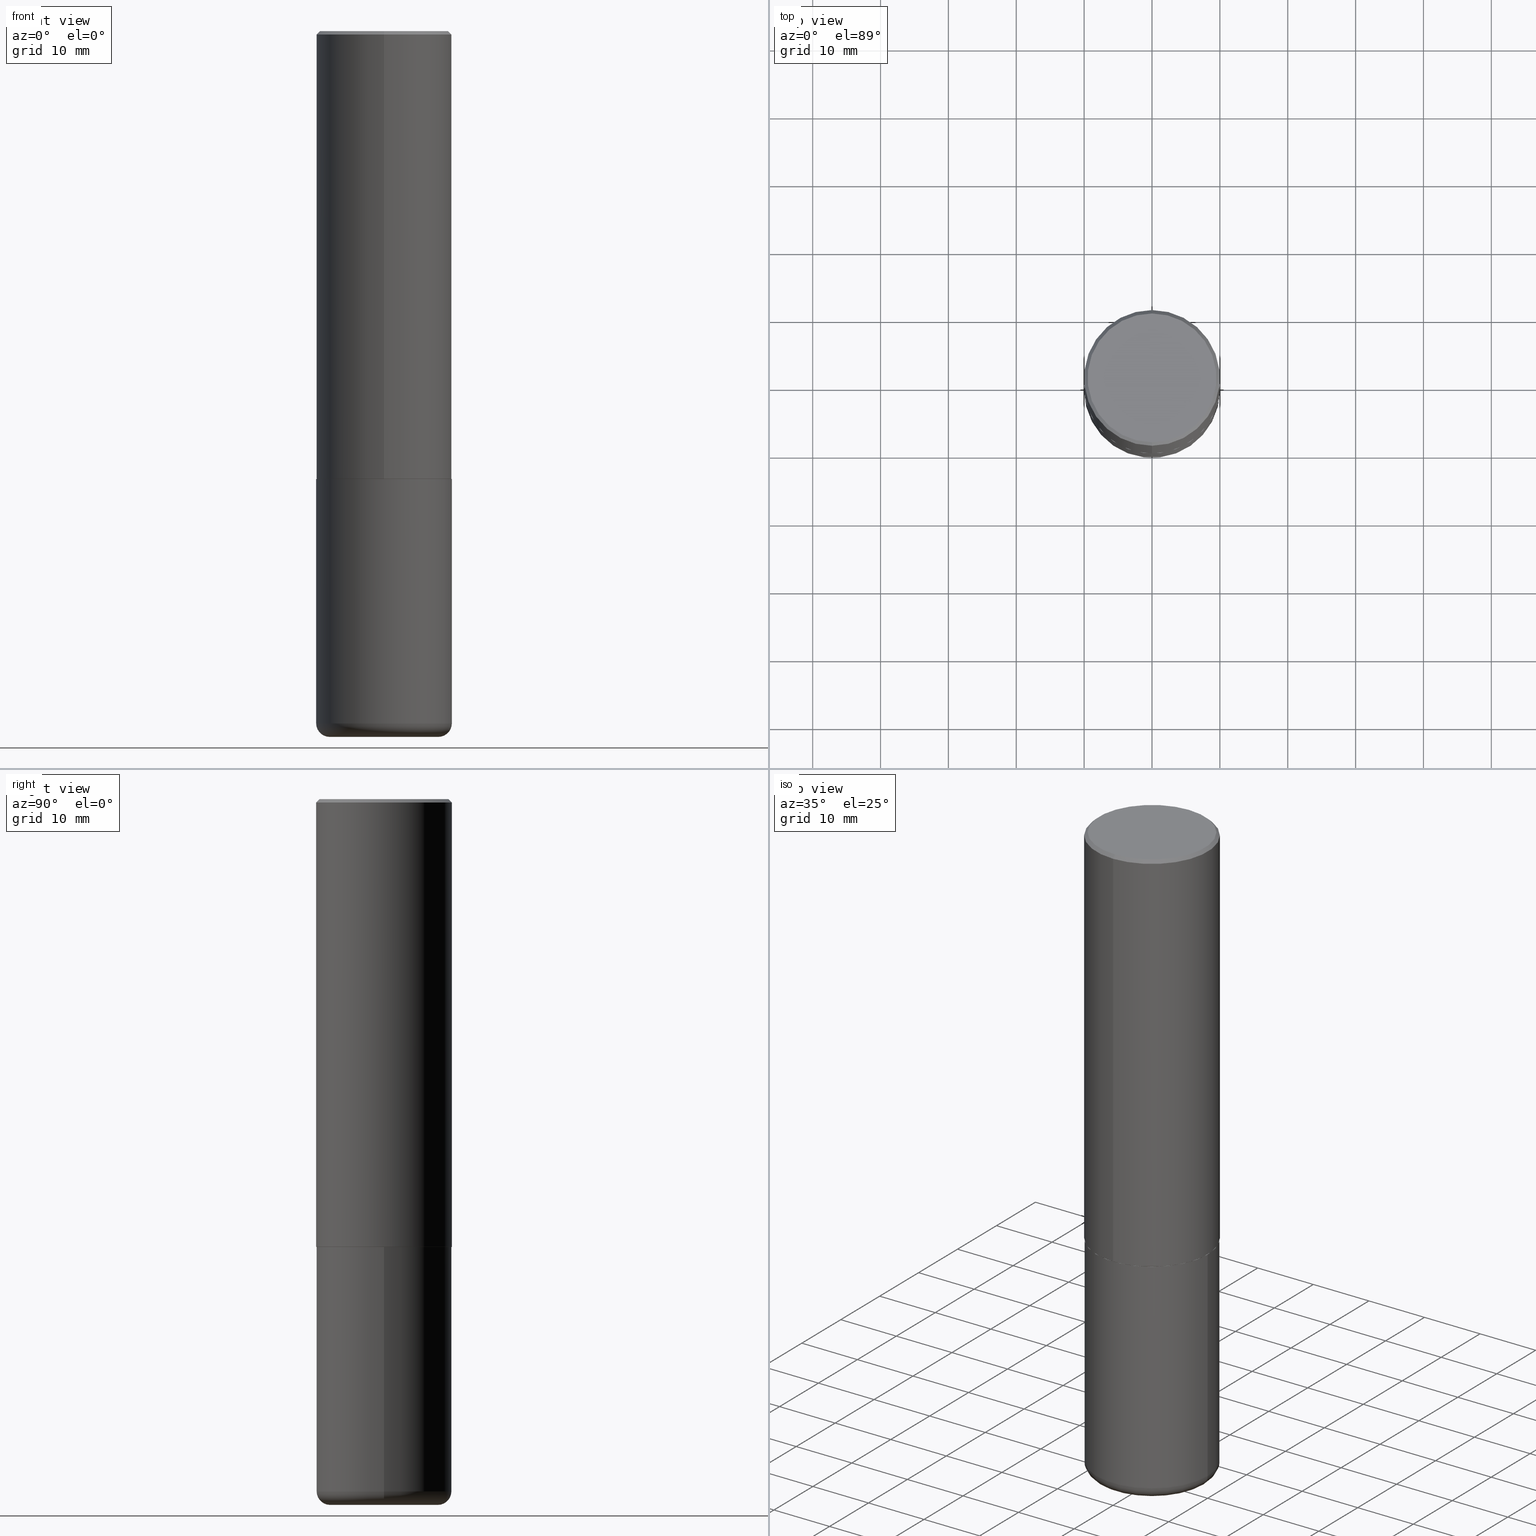
[diagram: canonical four-view strip — front | top / right | iso, engineering-drawing reading convention]
A machine part, canonical four-view strip (front | top / right | iso — engineering-drawing reading convention). The complete STEP part file that produces these views, byte-faithful:
ISO-10303-21;
HEADER;
FILE_DESCRIPTION (( 'STEP AP203' ),
    '1' );
FILE_NAME ('46924.STEP',
    '2024-03-05T09:03:01',
    ( '' ),
    ( '' ),
    'SwSTEP 2.0',
    'SolidWorks 2023',
    '' );
FILE_SCHEMA (( 'CONFIG_CONTROL_DESIGN' ));
ENDSEC;

DATA;
#1 = ORGANIZATION ( 'UNSPECIFIED', 'UNSPECIFIED', '' ) ;
#2 = LENGTH_MEASURE_WITH_UNIT ( LENGTH_MEASURE( 0.02539999999999999897 ), #119 );
#3 = CARTESIAN_POINT ( 'NONE',  ( 2.797406750687547524E-15, 0.3936999999999912236, -2.597400000000002152 ) ) ;
#4 = DATE_AND_TIME ( #391, #308 ) ;
#5 = CARTESIAN_POINT ( 'NONE',  ( 9.820513631878272860E-29, -1.402109076052630500E-14, -4.015800000000000480 ) ) ;
#6 = COORDINATED_UNIVERSAL_TIME_OFFSET ( 5, 0, .BEHIND. ) ;
#7 = FACE_OUTER_BOUND ( 'NONE', #177, .T. ) ;
#8 = PERSON_AND_ORGANIZATION ( #286, #1 ) ;
#9 = CLOSED_SHELL ( 'NONE', ( #145, #112, #175, #249, #314, #214, #240, #401 ) ) ;
#10 = DIRECTION ( 'NONE',  ( -2.445468806185136877E-29, 3.491481338843145188E-15, 1.000000000000000000 ) ) ;
#11 = AXIS2_PLACEMENT_3D ( 'NONE', #54, #360, #122 ) ;
#12 = LINE ( 'NONE', #38, #92 ) ;
#13 = DIRECTION ( 'NONE',  ( 1.000000000000000000, -6.982962677686267499E-15, 0.000000000000000000 ) ) ;
#14 = CARTESIAN_POINT ( 'NONE',  ( -2.742209443527332910E-15, -0.3927000000000090973, -2.598399999999998489 ) ) ;
#15 = VECTOR ( 'NONE', #397, 39.37007874015748143 ) ;
#16 = CARTESIAN_POINT ( 'NONE',  ( 4.890117617617573732E-31, -6.984136956843418330E-17, -0.02000000000000008715 ) ) ;
#17 = ORIENTED_EDGE ( 'NONE', *, *, #200, .T. ) ;
#18 = EDGE_CURVE ( 'NONE', #380, #91, #159, .T. ) ;
#19 = ORIENTED_EDGE ( 'NONE', *, *, #336, .F. ) ;
#20 = ORIENTED_EDGE ( 'NONE', *, *, #222, .T. ) ;
#21 = CIRCLE ( 'NONE', #400, 0.3150000000000000577 ) ;
#22 = CIRCLE ( 'NONE', #67, 0.3150000000000000577 ) ;
#23 = DIRECTION ( 'NONE',  ( -2.445468806185136597E-29, 3.491481338843145583E-15, 1.000000000000000000 ) ) ;
#24 = APPROVAL ( #292, 'UNSPECIFIED' ) ;
#25 = PERSON_AND_ORGANIZATION_ROLE ( 'design_owner' ) ;
#26 = CARTESIAN_POINT ( 'NONE',  ( -0.3937000000000000499, -8.749271185000653235E-15, -2.598400000000000265 ) ) ;
#27 = CIRCLE ( 'NONE', #74, 0.3937000000000000499 ) ;
#28 = CYLINDRICAL_SURFACE ( 'NONE', #203, 0.3937000000000001609 ) ;
#29 = DIRECTION ( 'NONE',  ( -2.445058808808776392E-29, 3.492068478421694670E-15, 1.000000000000000000 ) ) ;
#30 = EDGE_CURVE ( 'NONE', #205, #285, #275, .T. ) ;
#31 = APPLICATION_PROTOCOL_DEFINITION ( 'international standard', 'config_control_design', 1994, #198 ) ;
#32 = CARTESIAN_POINT ( 'NONE',  ( 4.890117617617573732E-31, -6.984136956843418330E-17, -0.02000000000000008715 ) ) ;
#33 = AXIS2_PLACEMENT_3D ( 'NONE', #280, #357, #96 ) ;
#34 = EDGE_LOOP ( 'NONE', ( #148, #111, #219, #19 ) ) ;
#35 = CARTESIAN_POINT ( 'NONE',  ( 2.679362779428219524E-15, 0.3736999999999997546, -1.095609464310762333E-15 ) ) ;
#36 = ADVANCED_BREP_SHAPE_REPRESENTATION ( '46924', ( #358, #195, #165 ), #115 ) ;
#37 = DATE_AND_TIME ( #231, #93 ) ;
#38 = CARTESIAN_POINT ( 'NONE',  ( -0.3937000000000000499, 2.797406750687514786E-15, -1.936584745033356735E-29 ) ) ;
#39 = AXIS2_PLACEMENT_3D ( 'NONE', #169, #160, #76 ) ;
#40 = CC_DESIGN_APPROVAL ( #24, ( #412 ) ) ;
#41 = DIRECTION ( 'NONE',  ( -6.982962677686265133E-15, -1.000000000000000000, 4.173946514383900962E-15 ) ) ;
#42 = CARTESIAN_POINT ( 'NONE',  ( 0.3937000000000000499, -2.749192406205083217E-15, 1.919750796630860172E-29 ) ) ;
#43 = CARTESIAN_POINT ( 'NONE',  ( 0.3936999999999999389, -1.677028316673138822E-14, -4.015800000000000480 ) ) ;
#44 = CARTESIAN_POINT ( 'NONE',  ( 0.3937000000000000499, -1.182145751705511584E-14, -2.598400000000000265 ) ) ;
#45 = CLOSED_SHELL ( 'NONE', ( #378, #417, #70, #206, #254, #385 ) ) ;
#46 = ORIENTED_EDGE ( 'NONE', *, *, #261, .F. ) ;
#47 = CC_DESIGN_DATE_AND_TIME_ASSIGNMENT ( #37, #233, ( #342 ) ) ;
#48 = ORIENTED_EDGE ( 'NONE', *, *, #261, .T. ) ;
#49 = VERTEX_POINT ( 'NONE', #390 ) ;
#50 = ORIENTED_EDGE ( 'NONE', *, *, #30, .T. ) ;
#51 = CONICAL_SURFACE ( 'NONE', #355, 0.3937000000000000499, 0.7853981633974476129 ) ;
#52 = DIRECTION ( 'NONE',  ( -6.982962677686265922E-15, -1.000000000000000000, 3.492068478421695064E-15 ) ) ;
#53 = ORIENTED_EDGE ( 'NONE', *, *, #320, .T. ) ;
#54 = CARTESIAN_POINT ( 'NONE',  ( 0.000000000000000000, 0.000000000000000000, 0.000000000000000000 ) ) ;
#55 = DIRECTION ( 'NONE',  ( 1.000000000000000000, -6.982962677686267499E-15, 0.000000000000000000 ) ) ;
#56 = MECHANICAL_CONTEXT ( 'NONE', #198, 'mechanical' ) ;
#57 = CARTESIAN_POINT ( 'NONE',  ( -2.700978061722651252E-15, -0.3937000000000001054, -0.01999999999999870978 ) ) ;
#58 = AXIS2_PLACEMENT_3D ( 'NONE', #264, #297, #304 ) ;
#59 = AXIS2_PLACEMENT_3D ( 'NONE', #316, #23, #250 ) ;
#60 = CARTESIAN_POINT ( 'NONE',  ( -0.3936999999999999389, -1.122368400983879100E-14, -4.015800000000000480 ) ) ;
#61 = CARTESIAN_POINT ( 'NONE',  ( 6.354306145991459756E-29, -9.072265110850031044E-15, -2.598400000000000265 ) ) ;
#62 = CARTESIAN_POINT ( 'NONE',  ( 2.609533152651355831E-15, 0.3736999999999997546, -1.200297727348474625E-15 ) ) ;
#63 = DIRECTION ( 'NONE',  ( 2.438088387897960049E-29, -3.491481338843145188E-15, -1.000000000000000000 ) ) ;
#64 = COORDINATED_UNIVERSAL_TIME_OFFSET ( 5, 0, .BEHIND. ) ;
#65 = ORIENTED_EDGE ( 'NONE', *, *, #237, .T. ) ;
#66 = AXIS2_PLACEMENT_3D ( 'NONE', #210, #243, #350 ) ;
#67 = AXIS2_PLACEMENT_3D ( 'NONE', #271, #201, #340 ) ;
#68 = DATE_TIME_ROLE ( 'creation_date' ) ;
#69 = CARTESIAN_POINT ( 'NONE',  ( 0.3150000000000000577, -1.649550358536443488E-14, -4.094500000000000028 ) ) ;
#70 = ADVANCED_FACE ( 'NONE', ( #295 ), #251, .F. ) ;
#71 = CARTESIAN_POINT ( 'NONE',  ( -5.119379194384959481E-45, 7.311571668294261102E-31, 2.093765260754239936E-16 ) ) ;
#72 = COORDINATED_UNIVERSAL_TIME_OFFSET ( 5, 0, .BEHIND. ) ;
#73 = CARTESIAN_POINT ( 'NONE',  ( 6.353240808808724474E-29, -9.073790734330933280E-15, -2.598400000000000265 ) ) ;
#74 = AXIS2_PLACEMENT_3D ( 'NONE', #61, #150, #55 ) ;
#75 = LINE ( 'NONE', #42, #15 ) ;
#76 = DIRECTION ( 'NONE',  ( 1.000000000000000000, -6.982962677686265922E-15, 4.876176775795935793E-29 ) ) ;
#77 = LINE ( 'NONE', #113, #377 ) ;
#78 = ORIENTED_EDGE ( 'NONE', *, *, #346, .T. ) ;
#79 = EDGE_LOOP ( 'NONE', ( #153, #211 ) ) ;
#80 = CC_DESIGN_PERSON_AND_ORGANIZATION_ASSIGNMENT ( #363, #393, ( #412 ) ) ;
#81 = EDGE_LOOP ( 'NONE', ( #84, #117, #341, #178 ) ) ;
#82 = ORIENTED_EDGE ( 'NONE', *, *, #187, .T. ) ;
#83 = CYLINDRICAL_SURFACE ( 'NONE', #66, 0.3937000000000001609 ) ;
#84 = ORIENTED_EDGE ( 'NONE', *, *, #346, .F. ) ;
#85 = AXIS2_PLACEMENT_3D ( 'NONE', #384, #63, #383 ) ;
#86 =( NAMED_UNIT ( * ) PLANE_ANGLE_UNIT ( ) SI_UNIT ( $, .RADIAN. ) );
#87 = VERTEX_POINT ( 'NONE', #125 ) ;
#88 = CARTESIAN_POINT ( 'NONE',  ( 4.890117617617573732E-31, -6.984136956843418330E-17, -0.02000000000000008715 ) ) ;
#89 = CARTESIAN_POINT ( 'NONE',  ( 2.749192406205083217E-15, 0.3936999999999999389, -0.02000000000000146105 ) ) ;
#90 = EDGE_CURVE ( 'NONE', #403, #285, #282, .T. ) ;
#91 = VERTEX_POINT ( 'NONE', #3 ) ;
#92 = VECTOR ( 'NONE', #10, 39.37007874015748143 ) ;
#93 = LOCAL_TIME ( 4, 3, 1.000000000000000000, #327 ) ;
#94 = DIRECTION ( 'NONE',  ( 6.982962677686265922E-15, 1.000000000000000000, -3.492068478421695064E-15 ) ) ;
#95 = CARTESIAN_POINT ( 'NONE',  ( 6.353240808808724474E-29, -9.073790734330933280E-15, -2.598400000000000265 ) ) ;
#96 = DIRECTION ( 'NONE',  ( -1.000000000000000000, 6.982962677686265922E-15, -4.876176775795935793E-29 ) ) ;
#97 = DIRECTION ( 'NONE',  ( 1.000000000000000000, -6.982962677686267499E-15, 0.000000000000000000 ) ) ;
#98 = CALENDAR_DATE ( 2024, 5, 3 ) ;
#99 = CARTESIAN_POINT ( 'NONE',  ( 6.354306145991459756E-29, -9.072265110850031044E-15, -2.598400000000000265 ) ) ;
#100 = APPROVAL ( #259, 'UNSPECIFIED' ) ;
#101 = VECTOR ( 'NONE', #184, 39.37007874015748143 ) ;
#102 = DATE_AND_TIME ( #98, #349 ) ;
#103 = CARTESIAN_POINT ( 'NONE',  ( 1.001297202692504215E-28, -1.429587034189326149E-14, -4.094500000000000028 ) ) ;
#104 = PRODUCT_DEFINITION_SHAPE ( 'NONE', 'NONE',  #412 ) ;
#105 = APPROVAL_ROLE ( '' ) ;
#106 = CARTESIAN_POINT ( 'NONE',  ( 6.350795749999916474E-29, -9.070298665852512644E-15, -2.597400000000000375 ) ) ;
#107 = AXIS2_PLACEMENT_3D ( 'NONE', #303, #194, #299 ) ;
#108 = PRODUCT_RELATED_PRODUCT_CATEGORY ( 'detail', '', ( #161 ) ) ;
#109 = TOROIDAL_SURFACE ( 'NONE', #59, 0.3150000000000000577, 0.07869999999999993667 ) ;
#110 = CARTESIAN_POINT ( 'NONE',  ( -0.3150000000000000577, -1.178288114288198979E-14, -4.015800000000000480 ) ) ;
#111 = ORIENTED_EDGE ( 'NONE', *, *, #140, .T. ) ;
#112 = ADVANCED_FACE ( 'NONE', ( #353 ), #28, .T. ) ;
#113 = CARTESIAN_POINT ( 'NONE',  ( 2.797406750687515181E-15, 0.3937000000000001609, -1.374827359954621742E-15 ) ) ;
#114 = CIRCLE ( 'NONE', #121, 0.07869999999999989504 ) ;
#115 =( GEOMETRIC_REPRESENTATION_CONTEXT ( 3 ) GLOBAL_UNCERTAINTY_ASSIGNED_CONTEXT ( ( #305 ) ) GLOBAL_UNIT_ASSIGNED_CONTEXT ( ( #247, #86, #215 ) ) REPRESENTATION_CONTEXT ( 'NONE', 'WORKASPACE' ) );
#116 = ORIENTED_EDGE ( 'NONE', *, *, #128, .F. ) ;
#117 = ORIENTED_EDGE ( 'NONE', *, *, #336, .T. ) ;
#118 = ORIENTED_EDGE ( 'NONE', *, *, #90, .F. ) ;
#119 =( LENGTH_UNIT ( ) NAMED_UNIT ( * ) SI_UNIT ( $, .METRE. ) );
#120 = ORIENTED_EDGE ( 'NONE', *, *, #222, .F. ) ;
#121 = AXIS2_PLACEMENT_3D ( 'NONE', #110, #373, #170 ) ;
#122 = DIRECTION ( 'NONE',  ( 1.000000000000000000, -6.982962677686265922E-15, 4.876176775795935793E-29 ) ) ;
#123 = ORIENTED_EDGE ( 'NONE', *, *, #200, .F. ) ;
#124 = FACE_OUTER_BOUND ( 'NONE', #281, .T. ) ;
#125 = CARTESIAN_POINT ( 'NONE',  ( -0.3150000000000000577, -1.164067236704386707E-14, -4.094500000000000028 ) ) ;
#126 = DIRECTION ( 'NONE',  ( -6.982962677686265133E-15, -1.000000000000000000, 4.173946514383900962E-15 ) ) ;
#127 = DIRECTION ( 'NONE',  ( 1.000000000000000000, -6.982962677686279332E-15, 0.000000000000000000 ) ) ;
#128 = EDGE_CURVE ( 'NONE', #329, #143, #27, .T. ) ;
#129 = ORIENTED_EDGE ( 'NONE', *, *, #140, .F. ) ;
#130 = DIRECTION ( 'NONE',  ( 6.982962677686265133E-15, 1.000000000000000000, -3.491137977679279424E-15 ) ) ;
#131 = AXIS2_PLACEMENT_3D ( 'NONE', #32, #186, #163 ) ;
#132 = PERSON_AND_ORGANIZATION_ROLE ( 'classification_officer' ) ;
#133 = FACE_OUTER_BOUND ( 'NONE', #34, .T. ) ;
#134 = FACE_OUTER_BOUND ( 'NONE', #347, .T. ) ;
#135 = SHAPE_DEFINITION_REPRESENTATION ( #104, #36 ) ;
#136 = DIRECTION ( 'NONE',  ( -2.445058808808776392E-29, 3.492068478421694670E-15, 1.000000000000000000 ) ) ;
#137 = CONICAL_SURFACE ( 'NONE', #131, 0.3937000000000000499, 0.7853981633974476129 ) ;
#138 = DIRECTION ( 'NONE',  ( -2.445058808808776111E-29, 3.492068478421695064E-15, 1.000000000000000000 ) ) ;
#139 = DIRECTION ( 'NONE',  ( -2.445058808808776392E-29, 3.492068478421694670E-15, 1.000000000000000000 ) ) ;
#140 = EDGE_CURVE ( 'NONE', #380, #173, #151, .T. ) ;
#141 = ORIENTED_EDGE ( 'NONE', *, *, #30, .F. ) ;
#142 = DIRECTION ( 'NONE',  ( -2.445058808808776392E-29, 3.492068478421694670E-15, 1.000000000000000000 ) ) ;
#143 = VERTEX_POINT ( 'NONE', #26 ) ;
#144 = ORIENTED_EDGE ( 'NONE', *, *, #289, .F. ) ;
#145 = ADVANCED_FACE ( 'NONE', ( #155 ), #218, .T. ) ;
#146 = VERTEX_POINT ( 'NONE', #89 ) ;
#147 = CARTESIAN_POINT ( 'NONE',  ( -2.700978061722651252E-15, -0.3937000000000001054, -0.01999999999999870978 ) ) ;
#148 = ORIENTED_EDGE ( 'NONE', *, *, #18, .F. ) ;
#149 = APPROVAL_ROLE ( '' ) ;
#150 = DIRECTION ( 'NONE',  ( -2.445468806185136597E-29, 3.491481338843145583E-15, 1.000000000000000000 ) ) ;
#151 = CIRCLE ( 'NONE', #394, 0.3926999999999999935 ) ;
#152 = CC_DESIGN_PERSON_AND_ORGANIZATION_ASSIGNMENT ( #156, #25, ( #161 ) ) ;
#153 = ORIENTED_EDGE ( 'NONE', *, *, #128, .T. ) ;
#154 = CARTESIAN_POINT ( 'NONE',  ( 2.793854037008778575E-15, 0.3926999999999909452, -2.598400000000002041 ) ) ;
#155 = FACE_OUTER_BOUND ( 'NONE', #272, .T. ) ;
#156 = PERSON_AND_ORGANIZATION ( #286, #1 ) ;
#157 = ORIENTED_EDGE ( 'NONE', *, *, #90, .T. ) ;
#158 = AXIS2_PLACEMENT_3D ( 'NONE', #95, #387, #126 ) ;
#159 = LINE ( 'NONE', #213, #318 ) ;
#160 = DIRECTION ( 'NONE',  ( -2.445468806185136597E-29, 3.491481338843145583E-15, 1.000000000000000000 ) ) ;
#161 = PRODUCT ( '46924', '46924', '', ( #56 ) ) ;
#162 = APPROVAL_ROLE ( '' ) ;
#163 = DIRECTION ( 'NONE',  ( 6.982962677686265133E-15, 1.000000000000000000, -3.491137977679279424E-15 ) ) ;
#164 = EDGE_CURVE ( 'NONE', #293, #379, #354, .T. ) ;
#165 = AXIS2_PLACEMENT_3D ( 'NONE', #287, #212, #352 ) ;
#166 = APPROVAL_PERSON_ORGANIZATION ( #411, #24, #149 ) ;
#167 = APPROVAL_DATE_TIME ( #333, #100 ) ;
#168 = CARTESIAN_POINT ( 'NONE',  ( 4.890117617617573732E-31, -6.984136956843418330E-17, -0.02000000000000008715 ) ) ;
#169 = CARTESIAN_POINT ( 'NONE',  ( 0.000000000000000000, 0.000000000000000000, 0.000000000000000000 ) ) ;
#170 = DIRECTION ( 'NONE',  ( -1.000000000000000000, 7.105427357601001859E-15, 0.000000000000000000 ) ) ;
#171 = CC_DESIGN_DATE_AND_TIME_ASSIGNMENT ( #102, #68, ( #412 ) ) ;
#172 = AXIS2_PLACEMENT_3D ( 'NONE', #402, #404, #52 ) ;
#173 = VERTEX_POINT ( 'NONE', #223 ) ;
#174 = DESIGN_CONTEXT ( 'detailed design', #324, 'design' ) ;
#175 = ADVANCED_FACE ( 'NONE', ( #361 ), #137, .T. ) ;
#176 = AXIS2_PLACEMENT_3D ( 'NONE', #73, #258, #41 ) ;
#177 = EDGE_LOOP ( 'NONE', ( #351, #244, #17, #257 ) ) ;
#178 = ORIENTED_EDGE ( 'NONE', *, *, #389, .F. ) ;
#179 = DIMENSIONAL_EXPONENTS ( 1.000000000000000000, 0.000000000000000000, 0.000000000000000000, 0.000000000000000000, 0.000000000000000000, 0.000000000000000000, 0.000000000000000000 ) ;
#180 = CARTESIAN_POINT ( 'NONE',  ( 6.353240808808724474E-29, -9.073790734330933280E-15, -2.598400000000000265 ) ) ;
#181 = EDGE_CURVE ( 'NONE', #285, #403, #381, .T. ) ;
#182 = ORIENTED_EDGE ( 'NONE', *, *, #18, .T. ) ;
#183 = CIRCLE ( 'NONE', #365, 0.3937000000000000499 ) ;
#184 = DIRECTION ( 'NONE',  ( -2.445058808808776111E-29, 3.492068478421695064E-15, 1.000000000000000000 ) ) ;
#185 = DIRECTION ( 'NONE',  ( -6.982962677686266711E-15, -1.000000000000000000, 3.491481338843145583E-15 ) ) ;
#186 = DIRECTION ( 'NONE',  ( 2.445058808808776392E-29, -3.492068478421694670E-15, -1.000000000000000000 ) ) ;
#187 = EDGE_CURVE ( 'NONE', #87, #205, #21, .T. ) ;
#188 = CALENDAR_DATE ( 2024, 5, 3 ) ;
#189 = VERTEX_POINT ( 'NONE', #35 ) ;
#190 = PERSON_AND_ORGANIZATION ( #286, #1 ) ;
#191 = DIRECTION ( 'NONE',  ( -6.982962677686265922E-15, -1.000000000000000000, 3.492068478421695064E-15 ) ) ;
#192 = EDGE_CURVE ( 'NONE', #173, #380, #262, .T. ) ;
#193 = PERSON_AND_ORGANIZATION ( #286, #1 ) ;
#194 = DIRECTION ( 'NONE',  ( -2.445058808808776392E-29, 3.492068478421694670E-15, 1.000000000000000000 ) ) ;
#195 = MANIFOLD_SOLID_BREP ( 'Body-Move/Copy2[2]', #9 ) ;
#196 = PERSON_AND_ORGANIZATION_ROLE ( 'design_supplier' ) ;
#197 = DIRECTION ( 'NONE',  ( -2.445058808808776392E-29, 3.492068478421694670E-15, 1.000000000000000000 ) ) ;
#198 = APPLICATION_CONTEXT ( 'configuration controlled 3d designs of mechanical parts and assemblies' ) ;
#199 = DIRECTION ( 'NONE',  ( 4.937700262164543309E-15, 0.7071067811865444641, -0.7071067811865503483 ) ) ;
#200 = EDGE_CURVE ( 'NONE', #189, #146, #230, .T. ) ;
#201 = DIRECTION ( 'NONE',  ( -2.445468806185136597E-29, 3.491481338843145583E-15, 1.000000000000000000 ) ) ;
#202 = ORIENTED_EDGE ( 'NONE', *, *, #289, .T. ) ;
#203 = AXIS2_PLACEMENT_3D ( 'NONE', #256, #226, #291 ) ;
#204 = CC_DESIGN_SECURITY_CLASSIFICATION ( #342, ( #410 ) ) ;
#205 = VERTEX_POINT ( 'NONE', #69 ) ;
#206 = ADVANCED_FACE ( 'NONE', ( #134 ), #234, .T. ) ;
#207 = EDGE_LOOP ( 'NONE', ( #321, #20, #116, #46 ) ) ;
#208 = ORIENTED_EDGE ( 'NONE', *, *, #330, .T. ) ;
#209 = CIRCLE ( 'NONE', #364, 0.3937000000000000499 ) ;
#210 = CARTESIAN_POINT ( 'NONE',  ( 0.000000000000000000, 0.000000000000000000, 0.000000000000000000 ) ) ;
#211 = ORIENTED_EDGE ( 'NONE', *, *, #267, .T. ) ;
#212 = DIRECTION ( 'NONE',  ( 0.000000000000000000, 0.000000000000000000, 1.000000000000000000 ) ) ;
#213 = CARTESIAN_POINT ( 'NONE',  ( 2.790301323329976493E-15, 0.3926999999999909452, -2.598400000000002041 ) ) ;
#214 = ADVANCED_FACE ( 'NONE', ( #133 ), #372, .T. ) ;
#215 =( NAMED_UNIT ( * ) SI_UNIT ( $, .STERADIAN. ) SOLID_ANGLE_UNIT ( ) );
#216 = ORIENTED_EDGE ( 'NONE', *, *, #330, .F. ) ;
#217 = PLANE ( 'NONE',  #294 ) ;
#218 = CONICAL_SURFACE ( 'NONE', #158, 0.3926999999999999935, 0.7853981633976873100 ) ;
#219 = ORIENTED_EDGE ( 'NONE', *, *, #311, .T. ) ;
#220 = AXIS2_PLACEMENT_3D ( 'NONE', #16, #142, #238 ) ;
#221 = DIRECTION ( 'NONE',  ( -6.982962677686265133E-15, -1.000000000000000000, 3.491137977679279424E-15 ) ) ;
#222 = EDGE_CURVE ( 'NONE', #403, #143, #12, .T. ) ;
#223 = CARTESIAN_POINT ( 'NONE',  ( -2.742209443527332910E-15, -0.3927000000000090973, -2.598399999999998489 ) ) ;
#224 = LINE ( 'NONE', #252, #101 ) ;
#225 = APPROVAL ( #298, 'UNSPECIFIED' ) ;
#226 = DIRECTION ( 'NONE',  ( -2.445058808808776392E-29, 3.492068478421694670E-15, 1.000000000000000000 ) ) ;
#227 = DIRECTION ( 'NONE',  ( -2.445468806185136597E-29, 3.491481338843145583E-15, 1.000000000000000000 ) ) ;
#228 = AXIS2_PLACEMENT_3D ( 'NONE', #366, #332, #232 ) ;
#229 = CALENDAR_DATE ( 2024, 5, 3 ) ;
#230 = LINE ( 'NONE', #268, #255 ) ;
#231 = CALENDAR_DATE ( 2024, 5, 3 ) ;
#232 = DIRECTION ( 'NONE',  ( 1.000000000000000000, -6.982962677686267499E-15, 0.000000000000000000 ) ) ;
#233 = DATE_TIME_ROLE ( 'classification_date' ) ;
#234 = CYLINDRICAL_SURFACE ( 'NONE', #39, 0.3937000000000000499 ) ;
#235 = TOROIDAL_SURFACE ( 'NONE', #301, 0.3150000000000000577, 0.07869999999999993667 ) ;
#236 = DIRECTION ( 'NONE',  ( 2.445058808808776392E-29, -3.492068478421694670E-15, -1.000000000000000000 ) ) ;
#237 = EDGE_CURVE ( 'NONE', #293, #189, #300, .T. ) ;
#238 = DIRECTION ( 'NONE',  ( -6.982962677686265133E-15, -1.000000000000000000, 3.491137977679279424E-15 ) ) ;
#239 = EDGE_LOOP ( 'NONE', ( #144, #82, #50, #118 ) ) ;
#240 = ADVANCED_FACE ( 'NONE', ( #369 ), #335, .F. ) ;
#241 = VECTOR ( 'NONE', #326, 39.37007874015748854 ) ;
#242 = CIRCLE ( 'NONE', #220, 0.3937000000000000499 ) ;
#243 = DIRECTION ( 'NONE',  ( -2.445058808808776392E-29, 3.492068478421694670E-15, 1.000000000000000000 ) ) ;
#244 = ORIENTED_EDGE ( 'NONE', *, *, #320, .F. ) ;
#245 = ORIENTED_EDGE ( 'NONE', *, *, #192, .T. ) ;
#246 = CIRCLE ( 'NONE', #269, 0.3937000000000002720 ) ;
#247 =( CONVERSION_BASED_UNIT ( 'INCH', #2 ) LENGTH_UNIT ( ) NAMED_UNIT ( #179 ) );
#248 = CIRCLE ( 'NONE', #382, 0.3937000000000002720 ) ;
#249 = ADVANCED_FACE ( 'NONE', ( #7 ), #51, .T. ) ;
#250 = DIRECTION ( 'NONE',  ( 1.000000000000000000, -6.982962677686264344E-15, 4.883557194083112340E-29 ) ) ;
#251 = PLANE ( 'NONE',  #85 ) ;
#252 = CARTESIAN_POINT ( 'NONE',  ( -2.749192406205084005E-15, -0.3937000000000001609, 1.374827359954621742E-15 ) ) ;
#253 = DIRECTION ( 'NONE',  ( -2.445468806185136597E-29, 3.491481338843145583E-15, 1.000000000000000000 ) ) ;
#254 = ADVANCED_FACE ( 'NONE', ( #266 ), #235, .T. ) ;
#255 = VECTOR ( 'NONE', #199, 39.37007874015748854 ) ;
#256 = CARTESIAN_POINT ( 'NONE',  ( 0.000000000000000000, 0.000000000000000000, 0.000000000000000000 ) ) ;
#257 = ORIENTED_EDGE ( 'NONE', *, *, #389, .T. ) ;
#258 = DIRECTION ( 'NONE',  ( -2.445058808808776392E-29, 3.492068478421694670E-15, 1.000000000000000000 ) ) ;
#259 = APPROVAL_STATUS ( 'not_yet_approved' ) ;
#260 = CARTESIAN_POINT ( 'NONE',  ( -2.632373081744935132E-15, -0.3736999999999997546, 1.514362516461610517E-15 ) ) ;
#261 = EDGE_CURVE ( 'NONE', #285, #329, #75, .T. ) ;
#262 = CIRCLE ( 'NONE', #107, 0.3926999999999999935 ) ;
#263 = COORDINATED_UNIVERSAL_TIME_OFFSET ( 5, 0, .BEHIND. ) ;
#264 = CARTESIAN_POINT ( 'NONE',  ( 6.353240808808724474E-29, -9.073790734330933280E-15, -2.598400000000000265 ) ) ;
#265 = APPROVAL_DATE_TIME ( #370, #24 ) ;
#266 = FACE_OUTER_BOUND ( 'NONE', #239, .T. ) ;
#267 = EDGE_CURVE ( 'NONE', #143, #329, #209, .T. ) ;
#268 = CARTESIAN_POINT ( 'NONE',  ( 2.749192406205083217E-15, 0.3936999999999999389, -0.02000000000000146105 ) ) ;
#269 = AXIS2_PLACEMENT_3D ( 'NONE', #106, #136, #399 ) ;
#270 = CC_DESIGN_APPROVAL ( #100, ( #410 ) ) ;
#271 = CARTESIAN_POINT ( 'NONE',  ( 1.001297202692504215E-28, -1.429587034189326149E-14, -4.094500000000000028 ) ) ;
#272 = EDGE_LOOP ( 'NONE', ( #245, #182, #362, #409 ) ) ;
#273 = FACE_OUTER_BOUND ( 'NONE', #207, .T. ) ;
#274 = EDGE_LOOP ( 'NONE', ( #53, #65 ) ) ;
#275 = CIRCLE ( 'NONE', #405, 0.07869999999999989504 ) ;
#276 = APPROVAL_PERSON_ORGANIZATION ( #8, #100, #162 ) ;
#277 = EDGE_LOOP ( 'NONE', ( #323, #129 ) ) ;
#278 = EDGE_LOOP ( 'NONE', ( #408, #202, #288, #141 ) ) ;
#279 = EDGE_CURVE ( 'NONE', #49, #91, #246, .T. ) ;
#280 = CARTESIAN_POINT ( 'NONE',  ( 1.001297202692504215E-28, -1.429587034189326149E-14, -4.094500000000000028 ) ) ;
#281 = EDGE_LOOP ( 'NONE', ( #312, #313 ) ) ;
#282 = CIRCLE ( 'NONE', #348, 0.3937000000000000499 ) ;
#283 = DIRECTION ( 'NONE',  ( 2.445058808808775831E-29, -3.492068478421695064E-15, -1.000000000000000000 ) ) ;
#284 = APPROVAL_PERSON_ORGANIZATION ( #331, #225, #105 ) ;
#285 = VERTEX_POINT ( 'NONE', #43 ) ;
#286 = PERSON ( 'UNSPECIFIED', 'UNSPECIFIED', 'UNSPECIFIED', ('UNSPECIFIED'), ('UNSPECIFIED'), ('UNSPECIFIED') ) ;
#287 = CARTESIAN_POINT ( 'NONE',  ( 0.000000000000000000, 0.000000000000000000, 0.000000000000000000 ) ) ;
#288 = ORIENTED_EDGE ( 'NONE', *, *, #181, .F. ) ;
#289 = EDGE_CURVE ( 'NONE', #87, #403, #114, .T. ) ;
#290 = PLANE ( 'NONE',  #33 ) ;
#291 = DIRECTION ( 'NONE',  ( -6.982962677686265922E-15, -1.000000000000000000, 3.492068478421694670E-15 ) ) ;
#292 = APPROVAL_STATUS ( 'not_yet_approved' ) ;
#293 = VERTEX_POINT ( 'NONE', #260 ) ;
#294 = AXIS2_PLACEMENT_3D ( 'NONE', #62, #283, #94 ) ;
#295 = FACE_OUTER_BOUND ( 'NONE', #79, .T. ) ;
#296 = CC_DESIGN_PERSON_AND_ORGANIZATION_ASSIGNMENT ( #193, #196, ( #410 ) ) ;
#297 = DIRECTION ( 'NONE',  ( -2.445058808808775831E-29, 3.492068478421695064E-15, 1.000000000000000000 ) ) ;
#298 = APPROVAL_STATUS ( 'not_yet_approved' ) ;
#299 = DIRECTION ( 'NONE',  ( -6.982962677686265133E-15, -1.000000000000000000, 4.173946514383900962E-15 ) ) ;
#300 = CIRCLE ( 'NONE', #418, 0.3736999999999997546 ) ;
#301 = AXIS2_PLACEMENT_3D ( 'NONE', #371, #339, #338 ) ;
#302 = SECURITY_CLASSIFICATION_LEVEL ( 'unclassified' ) ;
#303 = CARTESIAN_POINT ( 'NONE',  ( 6.353240808808724474E-29, -9.073790734330933280E-15, -2.598400000000000265 ) ) ;
#304 = DIRECTION ( 'NONE',  ( -6.982962677686265922E-15, -1.000000000000000000, 3.492068478421695064E-15 ) ) ;
#305 = UNCERTAINTY_MEASURE_WITH_UNIT (LENGTH_MEASURE( 1.000000000000000082E-05 ), #247, 'distance_accuracy_value', 'NONE');
#306 = LINE ( 'NONE', #14, #328 ) ;
#307 = CIRCLE ( 'NONE', #172, 0.3736999999999997546 ) ;
#308 = LOCAL_TIME ( 4, 3, 1.000000000000000000, #6 ) ;
#309 = FACE_OUTER_BOUND ( 'NONE', #81, .T. ) ;
#310 = ORIENTED_EDGE ( 'NONE', *, *, #267, .F. ) ;
#311 = EDGE_CURVE ( 'NONE', #173, #49, #306, .T. ) ;
#312 = ORIENTED_EDGE ( 'NONE', *, *, #367, .F. ) ;
#313 = ORIENTED_EDGE ( 'NONE', *, *, #187, .F. ) ;
#314 = ADVANCED_FACE ( 'NONE', ( #309 ), #83, .T. ) ;
#315 = CARTESIAN_POINT ( 'NONE',  ( 6.350795749999916474E-29, -9.070298665852512644E-15, -2.597400000000000375 ) ) ;
#316 = CARTESIAN_POINT ( 'NONE',  ( 9.820513631878272860E-29, -1.402109076052630500E-14, -4.015800000000000480 ) ) ;
#317 = ORIENTED_EDGE ( 'NONE', *, *, #407, .F. ) ;
#318 = VECTOR ( 'NONE', #388, 39.37007874015748143 ) ;
#319 = CYLINDRICAL_SURFACE ( 'NONE', #11, 0.3937000000000000499 ) ;
#320 = EDGE_CURVE ( 'NONE', #189, #293, #307, .T. ) ;
#321 = ORIENTED_EDGE ( 'NONE', *, *, #181, .T. ) ;
#322 = FACE_OUTER_BOUND ( 'NONE', #278, .T. ) ;
#323 = ORIENTED_EDGE ( 'NONE', *, *, #192, .F. ) ;
#324 = APPLICATION_CONTEXT ( 'configuration controlled 3d designs of mechanical parts and assemblies' ) ;
#325 = DIRECTION ( 'NONE',  ( -2.445058808808776392E-29, 3.492068478421694670E-15, 1.000000000000000000 ) ) ;
#326 = DIRECTION ( 'NONE',  ( -4.851104656540959542E-15, -0.7071067811865493491, -0.7071067811865454633 ) ) ;
#327 = COORDINATED_UNIVERSAL_TIME_OFFSET ( 5, 0, .BEHIND. ) ;
#328 = VECTOR ( 'NONE', #395, 39.37007874015748143 ) ;
#329 = VERTEX_POINT ( 'NONE', #44 ) ;
#330 = EDGE_CURVE ( 'NONE', #379, #146, #242, .T. ) ;
#331 = PERSON_AND_ORGANIZATION ( #286, #1 ) ;
#332 = DIRECTION ( 'NONE',  ( -2.445468806185136597E-29, 3.491481338843145583E-15, 1.000000000000000000 ) ) ;
#333 = DATE_AND_TIME ( #229, #406 ) ;
#334 = DIRECTION ( 'NONE',  ( -2.445468806185136597E-29, 3.491481338843145583E-15, 1.000000000000000000 ) ) ;
#335 = PLANE ( 'NONE',  #58 ) ;
#336 = EDGE_CURVE ( 'NONE', #91, #49, #248, .T. ) ;
#337 = CC_DESIGN_APPROVAL ( #225, ( #342 ) ) ;
#338 = DIRECTION ( 'NONE',  ( 1.000000000000000000, -6.982962677686264344E-15, 4.883557194083112340E-29 ) ) ;
#339 = DIRECTION ( 'NONE',  ( -2.445468806185136597E-29, 3.491481338843145583E-15, 1.000000000000000000 ) ) ;
#340 = DIRECTION ( 'NONE',  ( 1.000000000000000000, -6.982962677686267499E-15, 0.000000000000000000 ) ) ;
#341 = ORIENTED_EDGE ( 'NONE', *, *, #407, .T. ) ;
#342 = SECURITY_CLASSIFICATION ( '', '', #302 ) ;
#343 = CC_DESIGN_PERSON_AND_ORGANIZATION_ASSIGNMENT ( #190, #132, ( #342 ) ) ;
#344 = ORIENTED_EDGE ( 'NONE', *, *, #237, .F. ) ;
#345 = ORIENTED_EDGE ( 'NONE', *, *, #279, .T. ) ;
#346 = EDGE_CURVE ( 'NONE', #91, #146, #77, .T. ) ;
#347 = EDGE_LOOP ( 'NONE', ( #120, #157, #48, #310 ) ) ;
#348 = AXIS2_PLACEMENT_3D ( 'NONE', #5, #253, #97 ) ;
#349 = LOCAL_TIME ( 4, 3, 1.000000000000000000, #72 ) ;
#350 = DIRECTION ( 'NONE',  ( -6.982962677686265922E-15, -1.000000000000000000, 3.492068478421694670E-15 ) ) ;
#351 = ORIENTED_EDGE ( 'NONE', *, *, #164, .F. ) ;
#352 = DIRECTION ( 'NONE',  ( 1.000000000000000000, 0.000000000000000000, 0.000000000000000000 ) ) ;
#353 = FACE_OUTER_BOUND ( 'NONE', #376, .T. ) ;
#354 = LINE ( 'NONE', #57, #241 ) ;
#355 = AXIS2_PLACEMENT_3D ( 'NONE', #168, #236, #130 ) ;
#356 = LOCAL_TIME ( 4, 3, 1.000000000000000000, #64 ) ;
#357 = DIRECTION ( 'NONE',  ( 2.438088387897960049E-29, -3.491481338843145188E-15, -1.000000000000000000 ) ) ;
#358 = MANIFOLD_SOLID_BREP ( 'Body-Move/Copy2[1]', #45 ) ;
#359 = CARTESIAN_POINT ( 'NONE',  ( 0.3150000000000000577, -1.622072400399747838E-14, -4.015800000000000480 ) ) ;
#360 = DIRECTION ( 'NONE',  ( -2.445468806185136597E-29, 3.491481338843145583E-15, 1.000000000000000000 ) ) ;
#361 = FACE_OUTER_BOUND ( 'NONE', #416, .T. ) ;
#362 = ORIENTED_EDGE ( 'NONE', *, *, #279, .F. ) ;
#363 = PERSON_AND_ORGANIZATION ( #286, #1 ) ;
#364 = AXIS2_PLACEMENT_3D ( 'NONE', #99, #334, #13 ) ;
#365 = AXIS2_PLACEMENT_3D ( 'NONE', #88, #325, #221 ) ;
#366 = CARTESIAN_POINT ( 'NONE',  ( 9.820513631878272860E-29, -1.402109076052630500E-14, -4.015800000000000480 ) ) ;
#367 = EDGE_CURVE ( 'NONE', #205, #87, #22, .T. ) ;
#368 = APPROVAL_DATE_TIME ( #4, #225 ) ;
#369 = FACE_OUTER_BOUND ( 'NONE', #277, .T. ) ;
#370 = DATE_AND_TIME ( #188, #356 ) ;
#371 = CARTESIAN_POINT ( 'NONE',  ( 9.820513631878272860E-29, -1.402109076052630500E-14, -4.015800000000000480 ) ) ;
#372 = CONICAL_SURFACE ( 'NONE', #176, 0.3926999999999999935, 0.7853981633976873100 ) ;
#373 = DIRECTION ( 'NONE',  ( 7.105427357601001859E-15, 1.000000000000000000, -3.491481338843145583E-15 ) ) ;
#374 = DIRECTION ( 'NONE',  ( -6.982962677686265922E-15, -1.000000000000000000, 4.163344669033672479E-15 ) ) ;
#375 = CC_DESIGN_PERSON_AND_ORGANIZATION_ASSIGNMENT ( #396, #398, ( #410 ) ) ;
#376 = EDGE_LOOP ( 'NONE', ( #345, #78, #216, #317 ) ) ;
#377 = VECTOR ( 'NONE', #138, 39.37007874015748143 ) ;
#378 = ADVANCED_FACE ( 'NONE', ( #273 ), #319, .T. ) ;
#379 = VERTEX_POINT ( 'NONE', #147 ) ;
#380 = VERTEX_POINT ( 'NONE', #154 ) ;
#381 = CIRCLE ( 'NONE', #228, 0.3937000000000000499 ) ;
#382 = AXIS2_PLACEMENT_3D ( 'NONE', #315, #139, #374 ) ;
#383 = DIRECTION ( 'NONE',  ( -1.000000000000000000, 6.982962677686265922E-15, -4.876176775795935793E-29 ) ) ;
#384 = CARTESIAN_POINT ( 'NONE',  ( 6.354306145991459756E-29, -9.072265110850031044E-15, -2.598400000000000265 ) ) ;
#385 = ADVANCED_FACE ( 'NONE', ( #124 ), #290, .T. ) ;
#386 = APPLICATION_PROTOCOL_DEFINITION ( 'international standard', 'config_control_design', 1994, #324 ) ;
#387 = DIRECTION ( 'NONE',  ( -2.445058808808776392E-29, 3.492068478421694670E-15, 1.000000000000000000 ) ) ;
#388 = DIRECTION ( 'NONE',  ( 5.024295867789263036E-15, 0.7071067811867189912, 0.7071067811863760433 ) ) ;
#389 = EDGE_CURVE ( 'NONE', #146, #379, #183, .T. ) ;
#390 = CARTESIAN_POINT ( 'NONE',  ( -2.749192406205021291E-15, -0.3937000000000093758, -2.597399999999999043 ) ) ;
#391 = CALENDAR_DATE ( 2024, 5, 3 ) ;
#392 = DIRECTION ( 'NONE',  ( 1.000000000000000000, -6.982962677686267499E-15, 0.000000000000000000 ) ) ;
#393 = PERSON_AND_ORGANIZATION_ROLE ( 'creator' ) ;
#394 = AXIS2_PLACEMENT_3D ( 'NONE', #180, #29, #413 ) ;
#395 = DIRECTION ( 'NONE',  ( -4.937700262165728178E-15, -0.7071067811867141062, 0.7071067811863809283 ) ) ;
#396 = PERSON_AND_ORGANIZATION ( #286, #1 ) ;
#397 = DIRECTION ( 'NONE',  ( -2.445468806185136877E-29, 3.491481338843145188E-15, 1.000000000000000000 ) ) ;
#398 = PERSON_AND_ORGANIZATION_ROLE ( 'creator' ) ;
#399 = DIRECTION ( 'NONE',  ( -6.982962677686265922E-15, -1.000000000000000000, 4.163344669033672479E-15 ) ) ;
#400 = AXIS2_PLACEMENT_3D ( 'NONE', #103, #227, #392 ) ;
#401 = ADVANCED_FACE ( 'NONE', ( #415 ), #217, .F. ) ;
#402 = CARTESIAN_POINT ( 'NONE',  ( -5.119379194384959481E-45, 7.311571668294261102E-31, 2.093765260754239936E-16 ) ) ;
#403 = VERTEX_POINT ( 'NONE', #60 ) ;
#404 = DIRECTION ( 'NONE',  ( -2.445058808808776392E-29, 3.492068478421694670E-15, 1.000000000000000000 ) ) ;
#405 = AXIS2_PLACEMENT_3D ( 'NONE', #359, #185, #127 ) ;
#406 = LOCAL_TIME ( 4, 3, 1.000000000000000000, #263 ) ;
#407 = EDGE_CURVE ( 'NONE', #49, #379, #224, .T. ) ;
#408 = ORIENTED_EDGE ( 'NONE', *, *, #367, .T. ) ;
#409 = ORIENTED_EDGE ( 'NONE', *, *, #311, .F. ) ;
#410 = PRODUCT_DEFINITION_FORMATION_WITH_SPECIFIED_SOURCE ( 'ANY', '', #161, .NOT_KNOWN. ) ;
#411 = PERSON_AND_ORGANIZATION ( #286, #1 ) ;
#412 = PRODUCT_DEFINITION ( 'UNKNOWN', '', #410, #174 ) ;
#413 = DIRECTION ( 'NONE',  ( -6.982962677686265133E-15, -1.000000000000000000, 4.173946514383900962E-15 ) ) ;
#414 = ORIENTED_EDGE ( 'NONE', *, *, #164, .T. ) ;
#415 = FACE_OUTER_BOUND ( 'NONE', #274, .T. ) ;
#416 = EDGE_LOOP ( 'NONE', ( #344, #414, #208, #123 ) ) ;
#417 = ADVANCED_FACE ( 'NONE', ( #322 ), #109, .T. ) ;
#418 = AXIS2_PLACEMENT_3D ( 'NONE', #71, #197, #191 ) ;
ENDSEC;
END-ISO-10303-21;
